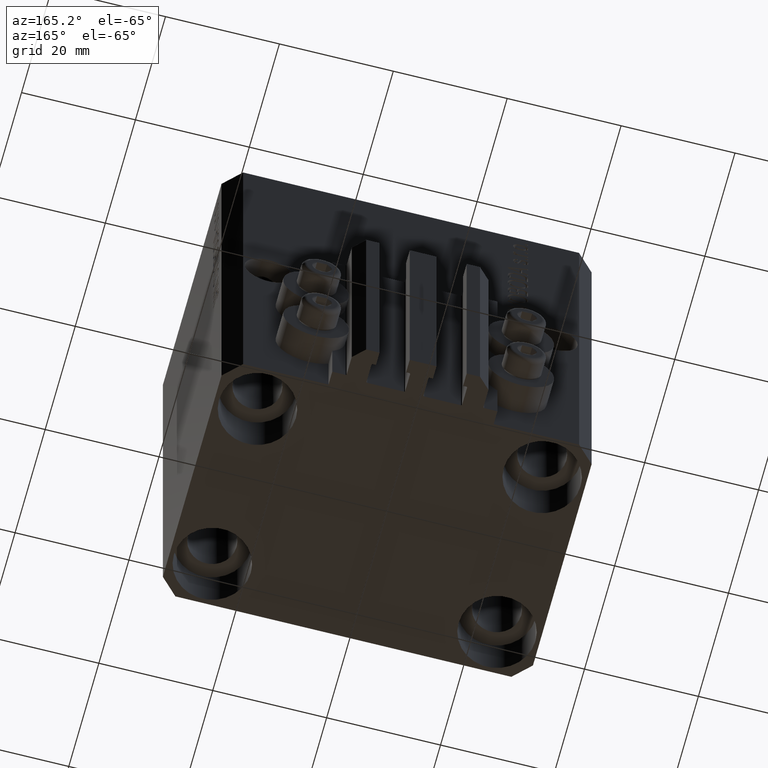
[diagram: clean part render]
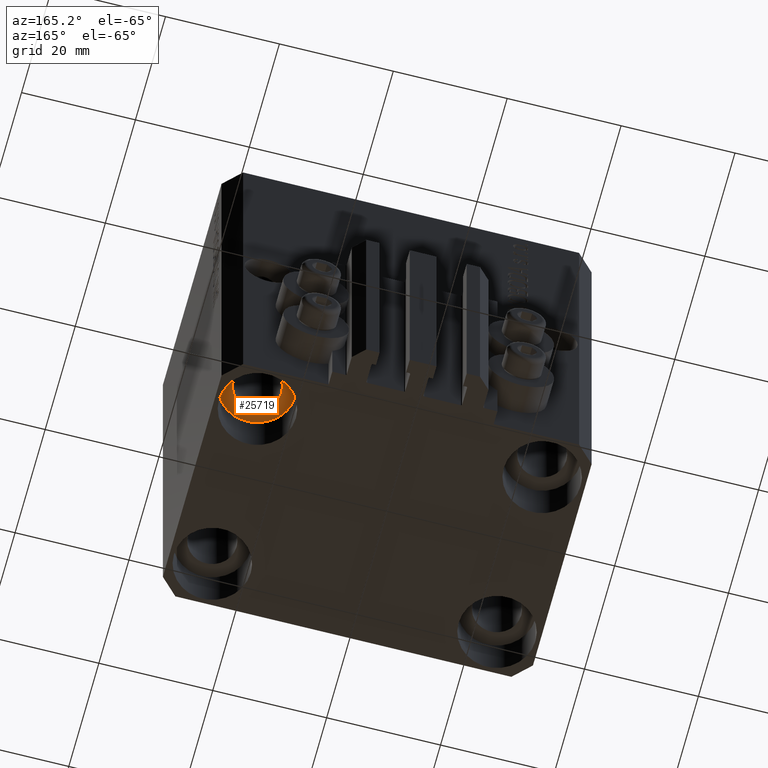
[diagram: same view with one face highlighted and labeled with its STEP entity id]
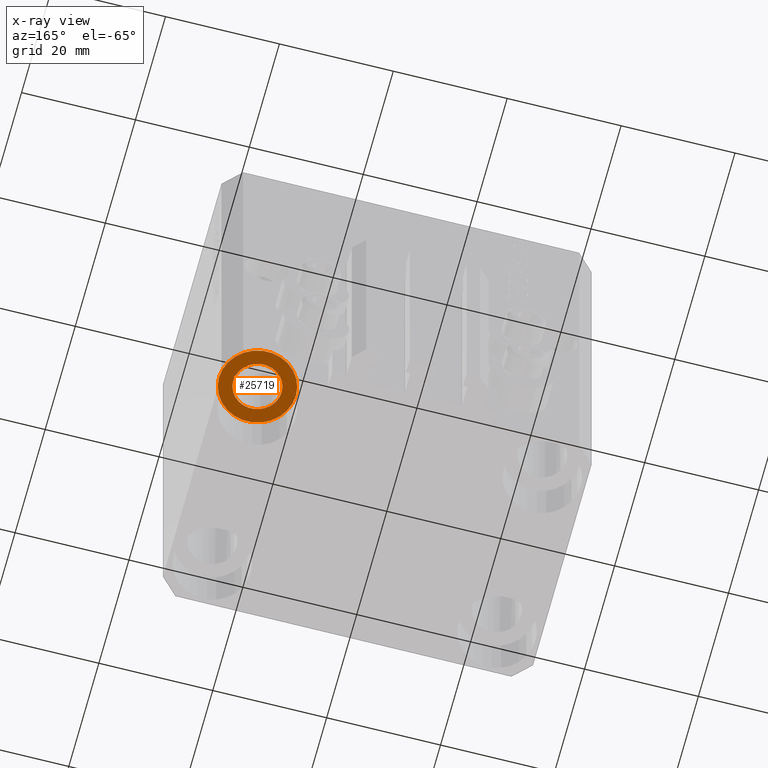
[diagram: x-ray of the same camera — body ghosted, the highlighted face saturated]
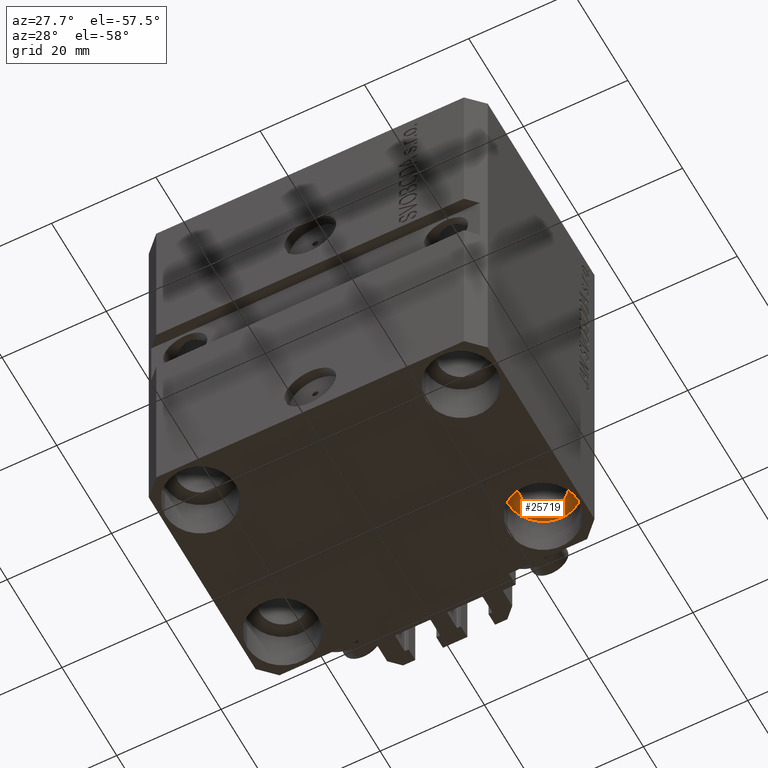
[diagram: same view with one face highlighted and labeled with its STEP entity id]
A machine part, auxiliary view. The second image highlights one B-rep face of the part: STEP entity #25719.
The next image is the same camera in x-ray: the body ghosted, the highlighted face saturated — about 0% of this face is hidden behind the body in this view.
A second angle (auxiliary view) of the same face is appended — the face is thin or edge-on in the first view.
In plain terms, the highlighted planar face has unit normal (0, 0, -1).
Its self-contained STEP definition (entity closure, byte-faithful):
#1109 = DIRECTION ( 'NONE',  ( -1.000000000000000000, 0.000000000000000000, 0.000000000000000000 ) ) ;
#1402 = FACE_BOUND ( 'NONE', #46721, .T. ) ;
#4702 = AXIS2_PLACEMENT_3D ( 'NONE', #37843, #44994, #19935 ) ;
#5058 = EDGE_CURVE ( 'NONE', #43234, #39368, #38404, .T. ) ;
#6208 = AXIS2_PLACEMENT_3D ( 'NONE', #34781, #16181, #27136 ) ;
#7788 = CARTESIAN_POINT ( 'NONE',  ( 29.24999999995844746, 15.00000000000000888, -68.00000000000000000 ) ) ;
#9156 = ORIENTED_EDGE ( 'NONE', *, *, #26791, .F. ) ;
#10497 = CIRCLE ( 'NONE', #37166, 4.249999999958450125 ) ;
#10783 = EDGE_CURVE ( 'NONE', #27738, #32979, #10497, .T. ) ;
#12361 = EDGE_LOOP ( 'NONE', ( #9156, #20597 ) ) ;
#16050 = CARTESIAN_POINT ( 'NONE',  ( 31.74999999995845101, 15.00000000000000888, -68.00000000000000000 ) ) ;
#16126 = ORIENTED_EDGE ( 'NONE', *, *, #10783, .F. ) ;
#16181 = DIRECTION ( 'NONE',  ( 0.000000000000000000, 0.000000000000000000, -1.000000000000000000 ) ) ;
#19342 = EDGE_CURVE ( 'NONE', #32979, #27738, #40387, .T. ) ;
#19935 = DIRECTION ( 'NONE',  ( 1.000000000000000000, 0.000000000000000000, 0.000000000000000000 ) ) ;
#19989 = PLANE ( 'NONE',  #6208 ) ;
#20597 = ORIENTED_EDGE ( 'NONE', *, *, #5058, .F. ) ;
#21872 = DIRECTION ( 'NONE',  ( 1.000000000000000000, 0.000000000000000000, 0.000000000000000000 ) ) ;
#22724 = DIRECTION ( 'NONE',  ( -1.000000000000000000, 0.000000000000000000, 0.000000000000000000 ) ) ;
#25719 = ADVANCED_FACE ( 'NONE', ( #1402, #37895 ), #19989, .T. ) ;
#26791 = EDGE_CURVE ( 'NONE', #39368, #43234, #46569, .T. ) ;
#27018 = CARTESIAN_POINT ( 'NONE',  ( 24.99999999999999645, 15.00000000000000888, -68.00000000000000000 ) ) ;
#27136 = DIRECTION ( 'NONE',  ( 1.000000000000000000, 0.000000000000000000, 0.000000000000000000 ) ) ;
#27738 = VERTEX_POINT ( 'NONE', #7788 ) ;
#30595 = DIRECTION ( 'NONE',  ( 0.000000000000000000, 0.000000000000000000, -1.000000000000000000 ) ) ;
#31961 = AXIS2_PLACEMENT_3D ( 'NONE', #33778, #44975, #1109 ) ;
#32979 = VERTEX_POINT ( 'NONE', #38943 ) ;
#33778 = CARTESIAN_POINT ( 'NONE',  ( 24.99999999999999645, 15.00000000000000888, -68.00000000000000000 ) ) ;
#34781 = CARTESIAN_POINT ( 'NONE',  ( 24.99999999999999645, 15.00000000000000888, -68.00000000000000000 ) ) ;
#37166 = AXIS2_PLACEMENT_3D ( 'NONE', #27018, #30595, #22724 ) ;
#37843 = CARTESIAN_POINT ( 'NONE',  ( 24.99999999999999645, 15.00000000000000888, -68.00000000000000000 ) ) ;
#37895 = FACE_OUTER_BOUND ( 'NONE', #12361, .T. ) ;
#38307 = AXIS2_PLACEMENT_3D ( 'NONE', #40026, #39564, #21872 ) ;
#38404 = CIRCLE ( 'NONE', #38307, 6.749999999958452790 ) ;
#38943 = CARTESIAN_POINT ( 'NONE',  ( 20.75000000004154899, 15.00000000000000888, -68.00000000000000000 ) ) ;
#39368 = VERTEX_POINT ( 'NONE', #41798 ) ;
#39564 = DIRECTION ( 'NONE',  ( -0.000000000000000000, -0.000000000000000000, 1.000000000000000000 ) ) ;
#40026 = CARTESIAN_POINT ( 'NONE',  ( 24.99999999999999645, 15.00000000000000888, -68.00000000000000000 ) ) ;
#40387 = CIRCLE ( 'NONE', #31961, 4.249999999958450125 ) ;
#41798 = CARTESIAN_POINT ( 'NONE',  ( 18.25000000004154543, 15.00000000000000888, -68.00000000000000000 ) ) ;
#42826 = ORIENTED_EDGE ( 'NONE', *, *, #19342, .F. ) ;
#43234 = VERTEX_POINT ( 'NONE', #16050 ) ;
#44975 = DIRECTION ( 'NONE',  ( 0.000000000000000000, 0.000000000000000000, -1.000000000000000000 ) ) ;
#44994 = DIRECTION ( 'NONE',  ( -0.000000000000000000, -0.000000000000000000, 1.000000000000000000 ) ) ;
#46569 = CIRCLE ( 'NONE', #4702, 6.749999999958452790 ) ;
#46721 = EDGE_LOOP ( 'NONE', ( #16126, #42826 ) ) ;